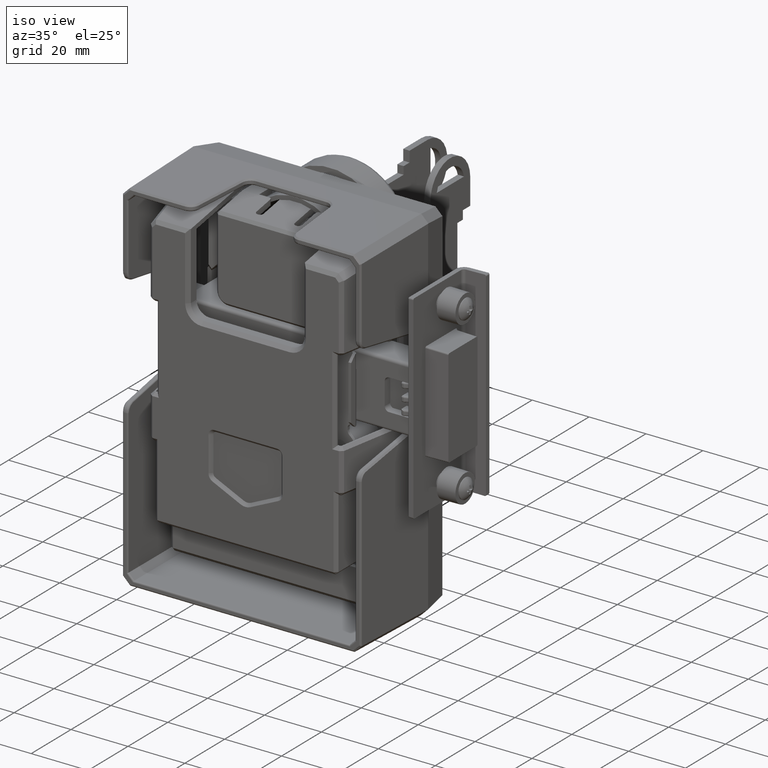
[diagram: clean part render]
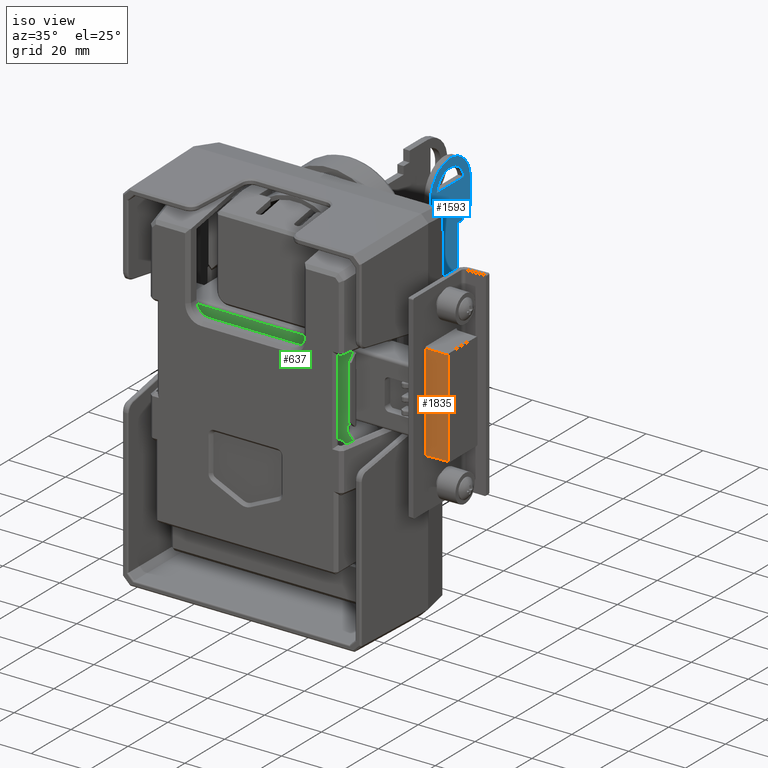
[diagram: same view with three faces highlighted in distinct colors, each labeled with its STEP entity id]
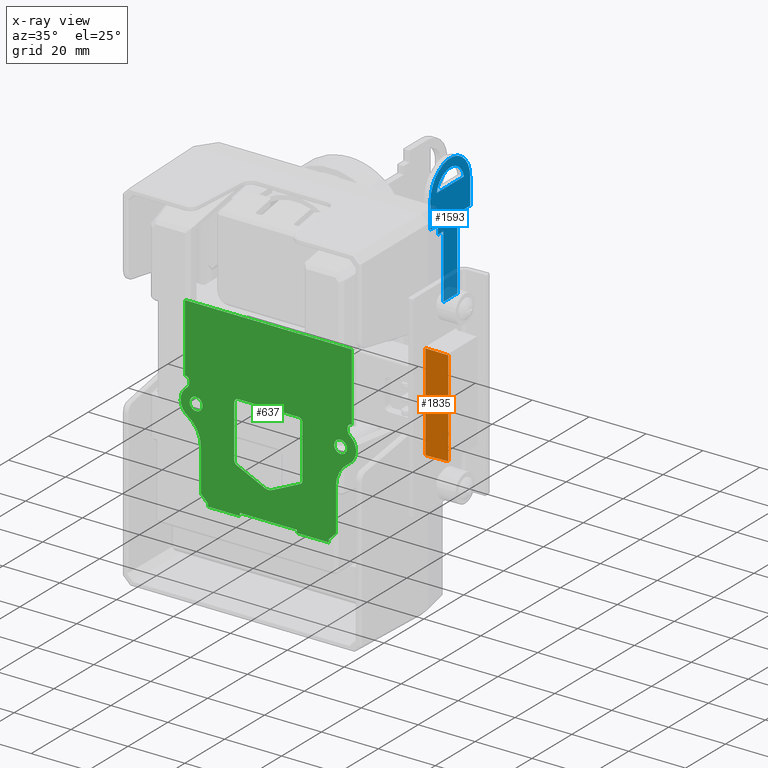
[diagram: x-ray of the same camera — body ghosted, the three highlighted faces saturated]
A machine part, iso view with three faces highlighted in distinct colors.
The next image is the same camera in x-ray (body ghosted, the three faces saturated) — at least one of them is partly hidden behind the body in this view.
Their STEP definitions:

[orange] entity #1835 — the highlighted planar face has unit normal (0.0175, -0.9998, 0).
#1835=ADVANCED_FACE('',(#16054),#16053,.T.);
#16053=PLANE('',#26972);
#16054=FACE_OUTER_BOUND('',#26973,.T.);
#26969=CARTESIAN_POINT('',(7.99999999999E-01,8.41396382257E+00,-2.04000913829E+01));
#26970=DIRECTION('',(-1.74524064373E-02,9.99847695156E-01,0.00000000000E+00));
#26971=DIRECTION('',(-9.99847695156E-01,-1.74524064373E-02,0.00000000000E+00));
#26972=AXIS2_PLACEMENT_3D('',#26969,#26970,#26971);
#26973=EDGE_LOOP('',(#35555,#35556,#35557,#35558));
#35555=ORIENTED_EDGE('',*,*,#40485,.F.);
#35556=ORIENTED_EDGE('',*,*,#40433,.T.);
#35557=ORIENTED_EDGE('',*,*,#40486,.F.);
#35558=ORIENTED_EDGE('',*,*,#40391,.F.);
#40391=EDGE_CURVE('',#64753,#64738,#64760,.T.);
#40433=EDGE_CURVE('',#65044,#65036,#65045,.T.);
#40485=EDGE_CURVE('',#65044,#64753,#65388,.T.);
#40486=EDGE_CURVE('',#64738,#65036,#65394,.T.);
#64738=VERTEX_POINT('',#83168);
#64753=VERTEX_POINT('',#83178);
#64760=LINE('',#83183,#83184);
#65036=VERTEX_POINT('',#83357);
#65044=VERTEX_POINT('',#83363);
#65045=LINE('',#83364,#83365);
#65388=LINE('',#83572,#83573);
#65394=LINE('',#83575,#83576);
#83168=CARTESIAN_POINT('',(-1.19390608511E-12,8.39999977067E+00,-1.70000761524E+01));
#83178=CARTESIAN_POINT('',(-8.00000000000E+00,8.26035925124E+00,-1.68604356330E+01));
#83183=CARTESIAN_POINT('',(-8.00000000000E+00,8.26035925124E+00,-1.68604356330E+01));
#83184=VECTOR('',#83185,8.00243706313E+00);
#83185=DIRECTION('',(9.99695459882E-01,1.74497491607E-02,-1.74497491607E-02));
#83357=CARTESIAN_POINT('',(-1.19390608511E-12,8.39999977067E+00,1.70000761524E+01));
#83363=CARTESIAN_POINT('',(-8.00000000000E+00,8.26035925124E+00,1.68604356330E+01));
#83364=CARTESIAN_POINT('',(-8.00000000000E+00,8.26035925124E+00,1.68604356330E+01));
#83365=VECTOR('',#83366,8.00243706313E+00);
#83366=DIRECTION('',(9.99695459882E-01,1.74497491607E-02,1.74497491607E-02));
#83572=CARTESIAN_POINT('',(-8.00000000000E+00,8.26035925124E+00,1.68604356330E+01));
#83573=VECTOR('',#83574,3.37208712660E+01);
#83574=DIRECTION('',(0.00000000000E+00,0.00000000000E+00,-1.00000000000E+00));
#83575=CARTESIAN_POINT('',(-1.19390608511E-12,8.39999977067E+00,-1.70000761524E+01));
#83576=VECTOR('',#83577,3.40001523048E+01);
#83577=DIRECTION('',(0.00000000000E+00,0.00000000000E+00,1.00000000000E+00));

[blue] entity #1593 — the highlighted planar face has unit normal (1, 0, 0).
#1593=ADVANCED_FACE('',(#13621,#13622),#13620,.T.);
#13620=PLANE('',#25413);
#13621=FACE_OUTER_BOUND('',#25414,.T.);
#13622=FACE_BOUND('',#25415,.T.);
#25410=CARTESIAN_POINT('',(3.30000000000E+00,8.82373963936E+01,-4.71773971656E+01));
#25411=DIRECTION('',(1.00000000000E+00,0.00000000000E+00,0.00000000000E+00));
#25412=DIRECTION('',(0.00000000000E+00,1.00000000000E+00,0.00000000000E+00));
#25413=AXIS2_PLACEMENT_3D('',#25410,#25411,#25412);
#25414=EDGE_LOOP('',(#34396,#34397,#34398,#34399,#34400,#34401,#34402,#34403,#34404,#34405,#34406,#34407));
#25415=EDGE_LOOP('',(#34408,#34409));
#34396=ORIENTED_EDGE('',*,*,#39811,.T.);
#34397=ORIENTED_EDGE('',*,*,#39812,.F.);
#34398=ORIENTED_EDGE('',*,*,#39813,.T.);
#34399=ORIENTED_EDGE('',*,*,#39814,.T.);
#34400=ORIENTED_EDGE('',*,*,#39815,.T.);
#34401=ORIENTED_EDGE('',*,*,#39816,.T.);
#34402=ORIENTED_EDGE('',*,*,#39817,.T.);
#34403=ORIENTED_EDGE('',*,*,#39818,.T.);
#34404=ORIENTED_EDGE('',*,*,#39819,.T.);
#34405=ORIENTED_EDGE('',*,*,#39820,.T.);
#34406=ORIENTED_EDGE('',*,*,#39821,.T.);
#34407=ORIENTED_EDGE('',*,*,#39822,.T.);
#34408=ORIENTED_EDGE('',*,*,#39823,.T.);
#34409=ORIENTED_EDGE('',*,*,#39824,.T.);
#39811=EDGE_CURVE('',#60889,#60890,#60891,.T.);
#39812=EDGE_CURVE('',#60897,#60890,#60898,.T.);
#39813=EDGE_CURVE('',#60897,#60904,#60905,.T.);
#39814=EDGE_CURVE('',#60904,#60911,#60912,.T.);
#39815=EDGE_CURVE('',#60911,#60918,#60919,.T.);
#39816=EDGE_CURVE('',#60918,#60925,#60926,.T.);
#39817=EDGE_CURVE('',#60925,#60932,#60933,.T.);
#39818=EDGE_CURVE('',#60932,#60939,#60940,.T.);
#39819=EDGE_CURVE('',#60939,#60946,#60947,.T.);
#39820=EDGE_CURVE('',#60946,#60953,#60954,.T.);
#39821=EDGE_CURVE('',#60953,#60960,#60961,.T.);
#39822=EDGE_CURVE('',#60960,#60889,#60967,.T.);
#39823=EDGE_CURVE('',#60973,#60974,#60975,.T.);
#39824=EDGE_CURVE('',#60974,#60973,#60981,.T.);
#60889=VERTEX_POINT('',#80958);
#60890=VERTEX_POINT('',#80959);
#60891=LINE('',#80960,#80961);
#60897=VERTEX_POINT('',#80963);
#60898=CIRCLE('',#80967,1.00000000000E+01);
#60904=VERTEX_POINT('',#80968);
#60905=LINE('',#80969,#80970);
#60911=VERTEX_POINT('',#80972);
#60912=LINE('',#80973,#80974);
#60918=VERTEX_POINT('',#80976);
#60919=LINE('',#80977,#80978);
#60925=VERTEX_POINT('',#80980);
#60926=LINE('',#80981,#80982);
#60932=VERTEX_POINT('',#80984);
#60933=LINE('',#80985,#80986);
#60939=VERTEX_POINT('',#80988);
#60940=LINE('',#80989,#80990);
#60946=VERTEX_POINT('',#80992);
#60947=LINE('',#80993,#80994);
#60953=VERTEX_POINT('',#80996);
#60954=LINE('',#80997,#80998);
#60960=VERTEX_POINT('',#81000);
#60961=LINE('',#81001,#81002);
#60967=LINE('',#81004,#81005);
#60973=VERTEX_POINT('',#81007);
#60974=VERTEX_POINT('',#81008);
#60975=CIRCLE('',#81012,7.00000000000E+00);
#60981=LINE('',#81013,#81014);
#80958=CARTESIAN_POINT('',(3.30000000000E+00,1.10237396394E+02,-1.73373971656E+01));
#80959=CARTESIAN_POINT('',(3.30000000000E+00,1.10237396394E+02,-8.33739716559E+00));
#80960=CARTESIAN_POINT('',(3.30000000000E+00,1.10237396394E+02,-1.73373971656E+01));
#80961=VECTOR('',#80962,9.00000000000E+00);
#80962=DIRECTION('',(0.00000000000E+00,0.00000000000E+00,1.00000000000E+00));
#80963=CARTESIAN_POINT('',(3.30000000000E+00,9.02373963936E+01,-8.33739716559E+00));
#80964=CARTESIAN_POINT('',(3.30000000000E+00,1.00237396394E+02,-8.33739716559E+00));
#80965=DIRECTION('',(-1.00000000000E+00,0.00000000000E+00,0.00000000000E+00));
#80966=DIRECTION('',(-0.00000000000E+00,-1.00000000000E+00,-0.00000000000E+00));
#80967=AXIS2_PLACEMENT_3D('',#80964,#80965,#80966);
#80968=CARTESIAN_POINT('',(3.30000000000E+00,9.02373963936E+01,-1.73373971656E+01));
#80969=CARTESIAN_POINT('',(3.30000000000E+00,9.02373963936E+01,-8.33739716559E+00));
#80970=VECTOR('',#80971,9.00000000000E+00);
#80971=DIRECTION('',(0.00000000000E+00,0.00000000000E+00,-1.00000000000E+00));
#80972=CARTESIAN_POINT('',(3.30000000000E+00,9.39873963936E+01,-1.73373971656E+01));
#80973=CARTESIAN_POINT('',(3.30000000000E+00,9.02373963936E+01,-1.73373971656E+01));
#80974=VECTOR('',#80975,3.75000000000E+00);
#80975=DIRECTION('',(0.00000000000E+00,1.00000000000E+00,0.00000000000E+00));
#80976=CARTESIAN_POINT('',(3.30000000000E+00,9.39873963936E+01,-2.03373971656E+01));
#80977=CARTESIAN_POINT('',(3.30000000000E+00,9.39873963936E+01,-1.73373971656E+01));
#80978=VECTOR('',#80979,3.00000000000E+00);
#80979=DIRECTION('',(0.00000000000E+00,0.00000000000E+00,-1.00000000000E+00));
#80980=CARTESIAN_POINT('',(3.30000000000E+00,9.67373963936E+01,-2.03373971656E+01));
#80981=CARTESIAN_POINT('',(3.30000000000E+00,9.39873963936E+01,-2.03373971656E+01));
#80982=VECTOR('',#80983,2.75000000000E+00);
#80983=DIRECTION('',(0.00000000000E+00,1.00000000000E+00,0.00000000000E+00));
#80984=CARTESIAN_POINT('',(3.30000000000E+00,9.67373963936E+01,-4.27373971656E+01));
#80985=CARTESIAN_POINT('',(3.30000000000E+00,9.67373963936E+01,-2.03373971656E+01));
#80986=VECTOR('',#80987,2.24000000000E+01);
#80987=DIRECTION('',(0.00000000000E+00,0.00000000000E+00,-1.00000000000E+00));
#80988=CARTESIAN_POINT('',(3.30000000000E+00,1.03737396394E+02,-4.27373971656E+01));
#80989=CARTESIAN_POINT('',(3.30000000000E+00,9.67373963936E+01,-4.27373971656E+01));
#80990=VECTOR('',#80991,7.00000000000E+00);
#80991=DIRECTION('',(0.00000000000E+00,1.00000000000E+00,0.00000000000E+00));
#80992=CARTESIAN_POINT('',(3.30000000000E+00,1.03737396394E+02,-2.03373971656E+01));
#80993=CARTESIAN_POINT('',(3.30000000000E+00,1.03737396394E+02,-4.27373971656E+01));
#80994=VECTOR('',#80995,2.24000000000E+01);
#80995=DIRECTION('',(0.00000000000E+00,0.00000000000E+00,1.00000000000E+00));
#80996=CARTESIAN_POINT('',(3.30000000000E+00,1.06487396394E+02,-2.03373971656E+01));
#80997=CARTESIAN_POINT('',(3.30000000000E+00,1.03737396394E+02,-2.03373971656E+01));
#80998=VECTOR('',#80999,2.75000000000E+00);
#80999=DIRECTION('',(0.00000000000E+00,1.00000000000E+00,0.00000000000E+00));
#81000=CARTESIAN_POINT('',(3.30000000000E+00,1.06487396394E+02,-1.73373971656E+01));
#81001=CARTESIAN_POINT('',(3.30000000000E+00,1.06487396394E+02,-2.03373971656E+01));
#81002=VECTOR('',#81003,3.00000000000E+00);
#81003=DIRECTION('',(0.00000000000E+00,0.00000000000E+00,1.00000000000E+00));
#81004=CARTESIAN_POINT('',(3.30000000000E+00,1.06487396394E+02,-1.73373971656E+01));
#81005=VECTOR('',#81006,3.75000000000E+00);
#81006=DIRECTION('',(0.00000000000E+00,1.00000000000E+00,0.00000000000E+00));
#81007=CARTESIAN_POINT('',(3.30000000001E+00,9.33999992280E+01,-6.83739716559E+00));
#81008=CARTESIAN_POINT('',(3.30000000001E+00,1.07074793559E+02,-6.83739716559E+00));
#81009=CARTESIAN_POINT('',(3.30000000001E+00,1.00237396394E+02,-8.33739716559E+00));
#81010=DIRECTION('',(-1.00000000000E+00,0.00000000000E+00,0.00000000000E+00));
#81011=DIRECTION('',(-0.00000000000E+00,-1.00000000000E+00,-0.00000000000E+00));
#81012=AXIS2_PLACEMENT_3D('',#81009,#81010,#81011);
#81013=CARTESIAN_POINT('',(3.30000000000E+00,1.07074793559E+02,-6.83739716559E+00));
#81014=VECTOR('',#81015,1.36747943312E+01);
#81015=DIRECTION('',(0.00000000000E+00,-1.00000000000E+00,0.00000000000E+00));

[green] entity #637 — the highlighted planar face has unit normal (0, -1, 0).
#637=ADVANCED_FACE('',(#4002,#4003,#4004,#4005),#4001,.T.);
#4001=PLANE('',#19501);
#4002=FACE_OUTER_BOUND('',#19502,.T.);
#4003=FACE_BOUND('',#19503,.T.);
#4004=FACE_BOUND('',#19504,.T.);
#4005=FACE_BOUND('',#19505,.T.);
#19498=CARTESIAN_POINT('',(-4.19624403934E+01,0.00000000000E+00,-8.58499999999E+01));
#19499=DIRECTION('',(-0.00000000000E+00,1.00000000000E+00,0.00000000000E+00));
#19500=DIRECTION('',(0.00000000000E+00,0.00000000000E+00,1.00000000000E+00));
#19501=AXIS2_PLACEMENT_3D('',#19498,#19499,#19500);
#19502=EDGE_LOOP('',(#29438,#29439,#29440,#29441,#29442,#29443,#29444,#29445,#29446,#29447,#29448,#29449,#29450,#29451,#29452,#29453,#29454,#29455,#29456,#29457,#29458,#29459,#29460,#29461,#29462,#29463,#29464,#29465));
#19503=EDGE_LOOP('',(#29466,#29467));
#19504=EDGE_LOOP('',(#29468,#29469,#29470,#29471,#29472,#29473,#29474,#29475,#29476,#29477));
#19505=EDGE_LOOP('',(#29478,#29479));
#29438=ORIENTED_EDGE('',*,*,#37404,.F.);
#29439=ORIENTED_EDGE('',*,*,#37517,.F.);
#29440=ORIENTED_EDGE('',*,*,#37505,.T.);
#29441=ORIENTED_EDGE('',*,*,#37553,.T.);
#29442=ORIENTED_EDGE('',*,*,#37449,.T.);
#29443=ORIENTED_EDGE('',*,*,#37554,.T.);
#29444=ORIENTED_EDGE('',*,*,#37526,.T.);
#29445=ORIENTED_EDGE('',*,*,#37489,.F.);
#29446=ORIENTED_EDGE('',*,*,#37485,.T.);
#29447=ORIENTED_EDGE('',*,*,#37483,.F.);
#29448=ORIENTED_EDGE('',*,*,#37479,.T.);
#29449=ORIENTED_EDGE('',*,*,#37555,.T.);
#29450=ORIENTED_EDGE('',*,*,#37496,.T.);
#29451=ORIENTED_EDGE('',*,*,#37556,.T.);
#29452=ORIENTED_EDGE('',*,*,#37460,.T.);
#29453=ORIENTED_EDGE('',*,*,#37557,.T.);
#29454=ORIENTED_EDGE('',*,*,#37363,.F.);
#29455=ORIENTED_EDGE('',*,*,#37558,.F.);
#29456=ORIENTED_EDGE('',*,*,#37398,.F.);
#29457=ORIENTED_EDGE('',*,*,#37434,.F.);
#29458=ORIENTED_EDGE('',*,*,#37384,.F.);
#29459=ORIENTED_EDGE('',*,*,#37387,.T.);
#29460=ORIENTED_EDGE('',*,*,#37390,.F.);
#29461=ORIENTED_EDGE('',*,*,#37393,.T.);
#29462=ORIENTED_EDGE('',*,*,#37416,.F.);
#29463=ORIENTED_EDGE('',*,*,#37443,.F.);
#29464=ORIENTED_EDGE('',*,*,#37354,.F.);
#29465=ORIENTED_EDGE('',*,*,#37433,.F.);
#29466=ORIENTED_EDGE('',*,*,#37559,.F.);
#29467=ORIENTED_EDGE('',*,*,#37560,.F.);
#29468=ORIENTED_EDGE('',*,*,#37515,.F.);
#29469=ORIENTED_EDGE('',*,*,#37412,.F.);
#29470=ORIENTED_EDGE('',*,*,#37408,.T.);
#29471=ORIENTED_EDGE('',*,*,#37425,.F.);
#29472=ORIENTED_EDGE('',*,*,#37428,.F.);
#29473=ORIENTED_EDGE('',*,*,#37551,.T.);
#29474=ORIENTED_EDGE('',*,*,#37549,.T.);
#29475=ORIENTED_EDGE('',*,*,#37546,.T.);
#29476=ORIENTED_EDGE('',*,*,#37508,.F.);
#29477=ORIENTED_EDGE('',*,*,#37512,.T.);
#29478=ORIENTED_EDGE('',*,*,#37561,.T.);
#29479=ORIENTED_EDGE('',*,*,#37562,.T.);
#37354=EDGE_CURVE('',#44692,#44699,#44700,.T.);
#37363=EDGE_CURVE('',#44752,#44759,#44760,.T.);
#37384=EDGE_CURVE('',#44893,#44879,#44900,.T.);
#37387=EDGE_CURVE('',#44893,#44913,#44920,.T.);
#37390=EDGE_CURVE('',#44933,#44913,#44940,.T.);
#37393=EDGE_CURVE('',#44933,#44953,#44960,.T.);
#37398=EDGE_CURVE('',#44986,#44993,#44994,.T.);
#37404=EDGE_CURVE('',#45027,#45034,#45035,.T.);
#37408=EDGE_CURVE('',#45061,#45062,#45063,.T.);
#37412=EDGE_CURVE('',#45061,#45089,#45090,.T.);
#37416=EDGE_CURVE('',#45115,#44953,#45116,.T.);
#37425=EDGE_CURVE('',#45170,#45062,#45177,.T.);
#37428=EDGE_CURVE('',#45190,#45170,#45197,.T.);
#37433=EDGE_CURVE('',#45034,#44692,#45229,.T.);
#37434=EDGE_CURVE('',#44879,#44986,#45235,.T.);
#37443=EDGE_CURVE('',#44699,#45115,#45291,.T.);
#37449=EDGE_CURVE('',#45331,#45324,#45332,.T.);
#37460=EDGE_CURVE('',#45403,#45396,#45404,.T.);
#37479=EDGE_CURVE('',#45530,#45523,#45531,.T.);
#37483=EDGE_CURVE('',#45530,#45557,#45558,.T.);
#37485=EDGE_CURVE('',#45570,#45557,#45571,.T.);
#37489=EDGE_CURVE('',#45570,#45597,#45598,.T.);
#37496=EDGE_CURVE('',#45643,#45636,#45644,.T.);
#37505=EDGE_CURVE('',#45705,#45698,#45706,.T.);
#37508=EDGE_CURVE('',#45725,#45726,#45727,.T.);
#37512=EDGE_CURVE('',#45725,#45753,#45754,.T.);
#37515=EDGE_CURVE('',#45089,#45753,#45773,.T.);
#37517=EDGE_CURVE('',#45705,#45027,#45785,.T.);
#37526=EDGE_CURVE('',#45839,#45597,#45840,.T.);
#37546=EDGE_CURVE('',#45968,#45726,#45969,.T.);
#37549=EDGE_CURVE('',#45988,#45968,#45989,.T.);
#37551=EDGE_CURVE('',#45190,#45988,#46001,.T.);
#37553=EDGE_CURVE('',#45698,#45331,#46013,.T.);
#37554=EDGE_CURVE('',#45324,#45839,#46019,.T.);
#37555=EDGE_CURVE('',#45523,#45643,#46025,.T.);
#37556=EDGE_CURVE('',#45636,#45403,#46031,.T.);
#37557=EDGE_CURVE('',#45396,#44759,#46037,.T.);
#37558=EDGE_CURVE('',#44993,#44752,#46043,.T.);
#37559=EDGE_CURVE('',#46049,#46050,#46051,.T.);
#37560=EDGE_CURVE('',#46050,#46049,#46057,.T.);
#37561=EDGE_CURVE('',#46063,#46064,#46065,.T.);
#37562=EDGE_CURVE('',#46064,#46063,#46071,.T.);
#44692=VERTEX_POINT('',#71311);
#44699=VERTEX_POINT('',#71316);
#44700=LINE('',#71317,#71318);
#44752=VERTEX_POINT('',#71346);
#44759=VERTEX_POINT('',#71350);
#44760=LINE('',#71351,#71352);
#44879=VERTEX_POINT('',#71418);
#44893=VERTEX_POINT('',#71426);
#44900=LINE('',#71430,#71431);
#44913=VERTEX_POINT('',#71438);
#44920=CIRCLE('',#71445,2.00000000000E+00);
#44933=VERTEX_POINT('',#71451);
#44940=CIRCLE('',#71458,5.45000001080E+00);
#44953=VERTEX_POINT('',#71464);
#44960=CIRCLE('',#71471,1.00000000000E+01);
#44986=VERTEX_POINT('',#71483);
#44993=VERTEX_POINT('',#71487);
#44994=LINE('',#71488,#71489);
#45027=VERTEX_POINT('',#71508);
#45034=VERTEX_POINT('',#71512);
#45035=LINE('',#71513,#71514);
#45061=VERTEX_POINT('',#71528);
#45062=VERTEX_POINT('',#71529);
#45063=CIRCLE('',#71533,1.50000000000E+00);
#45089=VERTEX_POINT('',#71546);
#45090=LINE('',#71547,#71548);
#45115=VERTEX_POINT('',#71560);
#45116=LINE('',#71561,#71562);
#45170=VERTEX_POINT('',#71591);
#45177=LINE('',#71595,#71596);
#45190=VERTEX_POINT('',#71603);
#45197=CIRCLE('',#71610,1.50000000000E+00);
#45229=LINE('',#71627,#71628);
#45235=CIRCLE('',#71633,1.25000000000E+00);
#45291=LINE('',#71675,#71676);
#45324=VERTEX_POINT('',#71694);
#45331=VERTEX_POINT('',#71698);
#45332=LINE('',#71699,#71700);
#45396=VERTEX_POINT('',#71735);
#45403=VERTEX_POINT('',#71740);
#45404=LINE('',#71741,#71742);
#45523=VERTEX_POINT('',#71807);
#45530=VERTEX_POINT('',#71811);
#45531=LINE('',#71812,#71813);
#45557=VERTEX_POINT('',#71827);
#45558=CIRCLE('',#71831,2.00000000000E+00);
#45570=VERTEX_POINT('',#71835);
#45571=CIRCLE('',#71839,5.45000001080E+00);
#45597=VERTEX_POINT('',#71853);
#45598=CIRCLE('',#71857,1.00000000000E+01);
#45636=VERTEX_POINT('',#71876);
#45643=VERTEX_POINT('',#71881);
#45644=LINE('',#71882,#71883);
#45698=VERTEX_POINT('',#71912);
#45705=VERTEX_POINT('',#71917);
#45706=LINE('',#71918,#71919);
#45725=VERTEX_POINT('',#71928);
#45726=VERTEX_POINT('',#71929);
#45727=CIRCLE('',#71933,1.50000000000E+00);
#45753=VERTEX_POINT('',#71946);
#45754=LINE('',#71947,#71948);
#45773=CIRCLE('',#71960,3.00000000000E+00);
#45785=LINE('',#71965,#71966);
#45839=VERTEX_POINT('',#71994);
#45840=LINE('',#71995,#71996);
#45968=VERTEX_POINT('',#72069);
#45969=LINE('',#72070,#72071);
#45988=VERTEX_POINT('',#72081);
#45989=CIRCLE('',#72085,1.50000000000E+00);
#46001=LINE('',#72089,#72090);
#46013=LINE('',#72095,#72096);
#46019=LINE('',#72098,#72099);
#46025=CIRCLE('',#72104,1.25000000000E+00);
#46031=LINE('',#72105,#72106);
#46037=LINE('',#72108,#72109);
#46043=LINE('',#72111,#72112);
#46049=VERTEX_POINT('',#72114);
#46050=VERTEX_POINT('',#72115);
#46051=CIRCLE('',#72119,2.25000000000E+00);
#46057=CIRCLE('',#72123,2.25000000000E+00);
#46063=VERTEX_POINT('',#72124);
#46064=VERTEX_POINT('',#72125);
#46065=CIRCLE('',#72129,2.25000000000E+00);
#46071=CIRCLE('',#72133,2.25000000000E+00);
#71311=CARTESIAN_POINT('',(2.12499999998E+01,0.00000000000E+00,-7.94999999999E+01));
#71316=CARTESIAN_POINT('',(2.12499999998E+01,0.00000000000E+00,-7.84999999999E+01));
#71317=CARTESIAN_POINT('',(2.12499999998E+01,0.00000000000E+00,-7.94999999999E+01));
#71318=VECTOR('',#71319,1.00000000000E+00);
#71319=DIRECTION('',(0.00000000000E+00,0.00000000000E+00,1.00000000000E+00));
#71346=CARTESIAN_POINT('',(2.93499999999E+01,0.00000000000E+00,-1.64999999996E+01));
#71350=CARTESIAN_POINT('',(2.93499999999E+01,0.00000000000E+00,-1.59999999997E+01));
#71351=CARTESIAN_POINT('',(2.93499999999E+01,0.00000000000E+00,-1.64999999996E+01));
#71352=VECTOR('',#71353,4.99999999863E-01);
#71353=DIRECTION('',(2.84217094382E-14,0.00000000000E+00,1.00000000000E+00));
#71418=CARTESIAN_POINT('',(2.78499999999E+01,0.00000000000E+00,-4.12499999996E+01));
#71426=CARTESIAN_POINT('',(2.78499999999E+01,0.00000000000E+00,-4.20250522958E+01));
#71430=CARTESIAN_POINT('',(2.78499999999E+01,0.00000000000E+00,-4.20250522958E+01));
#71431=VECTOR('',#71432,7.75052296214E-01);
#71432=DIRECTION('',(0.00000000000E+00,0.00000000000E+00,1.00000000000E+00));
#71438=CARTESIAN_POINT('',(2.86553691263E+01,0.00000000000E+00,-4.36290650999E+01));
#71442=CARTESIAN_POINT('',(2.98499999999E+01,0.00000000000E+00,-4.20250522958E+01));
#71443=DIRECTION('',(0.00000000000E+00,-1.00000000000E+00,0.00000000000E+00));
#71444=DIRECTION('',(-1.00000000000E+00,-0.00000000000E+00,-6.17225931799E-16));
#71445=AXIS2_PLACEMENT_3D('',#71442,#71443,#71444);
#71451=CARTESIAN_POINT('',(2.83454692524E+01,0.00000000000E+00,-5.25854891707E+01));
#71455=CARTESIAN_POINT('',(2.53999999891E+01,0.00000000000E+00,-4.79999999998E+01));
#71456=DIRECTION('',(0.00000000000E+00,-1.00000000000E+00,0.00000000000E+00));
#71457=DIRECTION('',(-1.00000000000E+00,-0.00000000000E+00,-6.17225931799E-16));
#71458=AXIS2_PLACEMENT_3D('',#71455,#71456,#71457);
#71464=CARTESIAN_POINT('',(2.37499999998E+01,0.00000000000E+00,-6.09992307522E+01));
#71468=CARTESIAN_POINT('',(3.37499999998E+01,0.00000000000E+00,-6.09992307522E+01));
#71469=DIRECTION('',(0.00000000000E+00,-1.00000000000E+00,0.00000000000E+00));
#71470=DIRECTION('',(-1.00000000000E+00,-0.00000000000E+00,-6.17225931799E-16));
#71471=AXIS2_PLACEMENT_3D('',#71468,#71469,#71470);
#71483=CARTESIAN_POINT('',(2.90999999999E+01,0.00000000000E+00,-3.99999999996E+01));
#71487=CARTESIAN_POINT('',(2.93499999999E+01,0.00000000000E+00,-3.99999999996E+01));
#71488=CARTESIAN_POINT('',(2.90999999999E+01,0.00000000000E+00,-3.99999999996E+01));
#71489=VECTOR('',#71490,2.50000000000E-01);
#71490=DIRECTION('',(1.00000000000E+00,0.00000000000E+00,0.00000000000E+00));
#71508=CARTESIAN_POINT('',(1.00000000000E+01,0.00000000000E+00,-7.84999999999E+01));
#71512=CARTESIAN_POINT('',(1.00000000000E+01,0.00000000000E+00,-7.94999999999E+01));
#71513=CARTESIAN_POINT('',(1.00000000000E+01,0.00000000000E+00,-7.84999999999E+01));
#71514=VECTOR('',#71515,1.00000000000E+00);
#71515=DIRECTION('',(1.77635683940E-15,0.00000000000E+00,-1.00000000000E+00));
#71528=CARTESIAN_POINT('',(1.11339273926E+01,0.00000000000E+00,-6.36182981480E+01));
#71529=CARTESIAN_POINT('',(1.20000000000E+01,0.00000000000E+00,-6.22588364674E+01));
#71530=CARTESIAN_POINT('',(1.04999999999E+01,0.00000000000E+00,-6.22588364674E+01));
#71531=DIRECTION('',(0.00000000000E+00,-1.00000000000E+00,0.00000000000E+00));
#71532=DIRECTION('',(6.17225931799E-16,-0.00000000000E+00,-1.00000000000E+00));
#71533=AXIS2_PLACEMENT_3D('',#71530,#71531,#71532);
#71546=CARTESIAN_POINT('',(1.26785478520E+00,0.00000000000E+00,-6.82189233607E+01));
#71547=CARTESIAN_POINT('',(1.11339273926E+01,0.00000000000E+00,-6.36182981480E+01));
#71548=VECTOR('',#71549,1.08860066618E+01);
#71549=DIRECTION('',(-9.06307787037E-01,0.00000000000E+00,-4.22618261741E-01));
#71560=CARTESIAN_POINT('',(2.37499999998E+01,3.55271367880E-15,-7.59999999999E+01));
#71561=CARTESIAN_POINT('',(2.37499999998E+01,3.55271367880E-15,-7.59999999999E+01));
#71562=VECTOR('',#71563,1.50007692477E+01);
#71563=DIRECTION('',(-4.73670865824E-16,0.00000000000E+00,1.00000000000E+00));
#71591=CARTESIAN_POINT('',(1.20000000000E+01,0.00000000000E+00,-4.39999999996E+01));
#71595=CARTESIAN_POINT('',(1.20000000000E+01,0.00000000000E+00,-4.39999999996E+01));
#71596=VECTOR('',#71597,1.82588364678E+01);
#71597=DIRECTION('',(-2.46779512307E-12,0.00000000000E+00,-1.00000000000E+00));
#71603=CARTESIAN_POINT('',(1.05000000000E+01,0.00000000000E+00,-4.24999999996E+01));
#71607=CARTESIAN_POINT('',(1.05000000000E+01,0.00000000000E+00,-4.39999999996E+01));
#71608=DIRECTION('',(0.00000000000E+00,1.00000000000E+00,-0.00000000000E+00));
#71609=DIRECTION('',(6.17225931799E-16,-0.00000000000E+00,-1.00000000000E+00));
#71610=AXIS2_PLACEMENT_3D('',#71607,#71608,#71609);
#71627=CARTESIAN_POINT('',(1.00000000000E+01,0.00000000000E+00,-7.94999999999E+01));
#71628=VECTOR('',#71629,1.12499999998E+01);
#71629=DIRECTION('',(1.00000000000E+00,0.00000000000E+00,1.26318708581E-15));
#71630=CARTESIAN_POINT('',(2.90999999999E+01,0.00000000000E+00,-4.12499999996E+01));
#71631=DIRECTION('',(0.00000000000E+00,1.00000000000E+00,-0.00000000000E+00));
#71632=DIRECTION('',(6.17225931799E-16,-0.00000000000E+00,-1.00000000000E+00));
#71633=AXIS2_PLACEMENT_3D('',#71630,#71631,#71632);
#71675=CARTESIAN_POINT('',(2.12499999998E+01,0.00000000000E+00,-7.84999999999E+01));
#71676=VECTOR('',#71677,3.53553390593E+00);
#71677=DIRECTION('',(7.07106781187E-01,0.00000000000E+00,7.07106781187E-01));
#71694=CARTESIAN_POINT('',(-2.12499999998E+01,0.00000000000E+00,-7.84999999999E+01));
#71698=CARTESIAN_POINT('',(-2.12499999998E+01,0.00000000000E+00,-7.94999999999E+01));
#71699=CARTESIAN_POINT('',(-2.12499999998E+01,0.00000000000E+00,-7.94999999999E+01));
#71700=VECTOR('',#71701,1.00000000000E+00);
#71701=DIRECTION('',(0.00000000000E+00,0.00000000000E+00,1.00000000000E+00));
#71735=CARTESIAN_POINT('',(-2.93499999999E+01,0.00000000000E+00,-1.59999999997E+01));
#71740=CARTESIAN_POINT('',(-2.93499999999E+01,0.00000000000E+00,-1.64999999996E+01));
#71741=CARTESIAN_POINT('',(-2.93499999999E+01,0.00000000000E+00,-1.64999999996E+01));
#71742=VECTOR('',#71743,4.99999999863E-01);
#71743=DIRECTION('',(-2.84217094382E-14,0.00000000000E+00,1.00000000000E+00));
#71807=CARTESIAN_POINT('',(-2.78499999999E+01,0.00000000000E+00,-4.12499999996E+01));
#71811=CARTESIAN_POINT('',(-2.78499999999E+01,0.00000000000E+00,-4.20250522958E+01));
#71812=CARTESIAN_POINT('',(-2.78499999999E+01,0.00000000000E+00,-4.20250522958E+01));
#71813=VECTOR('',#71814,7.75052296214E-01);
#71814=DIRECTION('',(0.00000000000E+00,0.00000000000E+00,1.00000000000E+00));
#71827=CARTESIAN_POINT('',(-2.86553691263E+01,0.00000000000E+00,-4.36290650999E+01));
#71828=CARTESIAN_POINT('',(-2.98499999999E+01,0.00000000000E+00,-4.20250522958E+01));
#71829=DIRECTION('',(0.00000000000E+00,1.00000000000E+00,0.00000000000E+00));
#71830=DIRECTION('',(1.00000000000E+00,-0.00000000000E+00,-0.00000000000E+00));
#71831=AXIS2_PLACEMENT_3D('',#71828,#71829,#71830);
#71835=CARTESIAN_POINT('',(-2.83454692524E+01,0.00000000000E+00,-5.25854891707E+01));
#71836=CARTESIAN_POINT('',(-2.53999999891E+01,0.00000000000E+00,-4.79999999998E+01));
#71837=DIRECTION('',(0.00000000000E+00,1.00000000000E+00,0.00000000000E+00));
#71838=DIRECTION('',(1.00000000000E+00,-0.00000000000E+00,-0.00000000000E+00));
#71839=AXIS2_PLACEMENT_3D('',#71836,#71837,#71838);
#71853=CARTESIAN_POINT('',(-2.37499999998E+01,0.00000000000E+00,-6.09992307522E+01));
#71854=CARTESIAN_POINT('',(-3.37499999998E+01,0.00000000000E+00,-6.09992307522E+01));
#71855=DIRECTION('',(0.00000000000E+00,1.00000000000E+00,0.00000000000E+00));
#71856=DIRECTION('',(1.00000000000E+00,-0.00000000000E+00,-0.00000000000E+00));
#71857=AXIS2_PLACEMENT_3D('',#71854,#71855,#71856);
#71876=CARTESIAN_POINT('',(-2.93499999999E+01,0.00000000000E+00,-3.99999999996E+01));
#71881=CARTESIAN_POINT('',(-2.90999999999E+01,0.00000000000E+00,-3.99999999996E+01));
#71882=CARTESIAN_POINT('',(-2.90999999999E+01,0.00000000000E+00,-3.99999999996E+01));
#71883=VECTOR('',#71884,2.50000000000E-01);
#71884=DIRECTION('',(-1.00000000000E+00,0.00000000000E+00,0.00000000000E+00));
#71912=CARTESIAN_POINT('',(-1.00000000000E+01,0.00000000000E+00,-7.94999999999E+01));
#71917=CARTESIAN_POINT('',(-1.00000000000E+01,0.00000000000E+00,-7.84999999999E+01));
#71918=CARTESIAN_POINT('',(-1.00000000000E+01,0.00000000000E+00,-7.84999999999E+01));
#71919=VECTOR('',#71920,1.00000000000E+00);
#71920=DIRECTION('',(0.00000000000E+00,0.00000000000E+00,-1.00000000000E+00));
#71928=CARTESIAN_POINT('',(-1.11339273926E+01,0.00000000000E+00,-6.36182981480E+01));
#71929=CARTESIAN_POINT('',(-1.20000000000E+01,0.00000000000E+00,-6.22588364674E+01));
#71930=CARTESIAN_POINT('',(-1.04999999999E+01,0.00000000000E+00,-6.22588364674E+01));
#71931=DIRECTION('',(0.00000000000E+00,1.00000000000E+00,0.00000000000E+00));
#71932=DIRECTION('',(-0.00000000000E+00,0.00000000000E+00,-1.00000000000E+00));
#71933=AXIS2_PLACEMENT_3D('',#71930,#71931,#71932);
#71946=CARTESIAN_POINT('',(-1.26785478520E+00,0.00000000000E+00,-6.82189233607E+01));
#71947=CARTESIAN_POINT('',(-1.11339273926E+01,0.00000000000E+00,-6.36182981480E+01));
#71948=VECTOR('',#71949,1.08860066618E+01);
#71949=DIRECTION('',(9.06307787037E-01,0.00000000000E+00,-4.22618261741E-01));
#71957=CARTESIAN_POINT('',(3.54774661521E-11,0.00000000000E+00,-6.54999999996E+01));
#71958=DIRECTION('',(0.00000000000E+00,1.00000000000E+00,0.00000000000E+00));
#71959=DIRECTION('',(4.22618261721E-01,0.00000000000E+00,-9.06307787046E-01));
#71960=AXIS2_PLACEMENT_3D('',#71957,#71958,#71959);
#71965=CARTESIAN_POINT('',(-1.00000000000E+01,0.00000000000E+00,-7.84999999999E+01));
#71966=VECTOR('',#71967,2.00000000000E+01);
#71967=DIRECTION('',(1.00000000000E+00,0.00000000000E+00,0.00000000000E+00));
#71994=CARTESIAN_POINT('',(-2.37499999998E+01,3.55271367880E-15,-7.59999999999E+01));
#71995=CARTESIAN_POINT('',(-2.37499999998E+01,3.55271367880E-15,-7.59999999999E+01));
#71996=VECTOR('',#71997,1.50007692477E+01);
#71997=DIRECTION('',(0.00000000000E+00,0.00000000000E+00,1.00000000000E+00));
#72069=CARTESIAN_POINT('',(-1.20000000000E+01,0.00000000000E+00,-4.39999999996E+01));
#72070=CARTESIAN_POINT('',(-1.20000000000E+01,0.00000000000E+00,-4.39999999996E+01));
#72071=VECTOR('',#72072,1.82588364678E+01);
#72072=DIRECTION('',(2.46847613568E-12,0.00000000000E+00,-1.00000000000E+00));
#72081=CARTESIAN_POINT('',(-1.05000000000E+01,0.00000000000E+00,-4.24999999996E+01));
#72082=CARTESIAN_POINT('',(-1.05000000000E+01,0.00000000000E+00,-4.39999999996E+01));
#72083=DIRECTION('',(0.00000000000E+00,-1.00000000000E+00,0.00000000000E+00));
#72084=DIRECTION('',(-0.00000000000E+00,-0.00000000000E+00,-1.00000000000E+00));
#72085=AXIS2_PLACEMENT_3D('',#72082,#72083,#72084);
#72089=CARTESIAN_POINT('',(1.05000000000E+01,0.00000000000E+00,-4.24999999996E+01));
#72090=VECTOR('',#72091,2.10000000000E+01);
#72091=DIRECTION('',(-1.00000000000E+00,0.00000000000E+00,0.00000000000E+00));
#72095=CARTESIAN_POINT('',(-1.00000000000E+01,0.00000000000E+00,-7.94999999999E+01));
#72096=VECTOR('',#72097,1.12499999998E+01);
#72097=DIRECTION('',(-1.00000000000E+00,0.00000000000E+00,0.00000000000E+00));
#72098=CARTESIAN_POINT('',(-2.12499999998E+01,0.00000000000E+00,-7.84999999999E+01));
#72099=VECTOR('',#72100,3.53553390593E+00);
#72100=DIRECTION('',(-7.07106781187E-01,0.00000000000E+00,7.07106781187E-01));
#72101=CARTESIAN_POINT('',(-2.90999999999E+01,0.00000000000E+00,-4.12499999996E+01));
#72102=DIRECTION('',(0.00000000000E+00,-1.00000000000E+00,0.00000000000E+00));
#72103=DIRECTION('',(-0.00000000000E+00,-0.00000000000E+00,-1.00000000000E+00));
#72104=AXIS2_PLACEMENT_3D('',#72101,#72102,#72103);
#72105=CARTESIAN_POINT('',(-2.93499999999E+01,0.00000000000E+00,-3.99999999996E+01));
#72106=VECTOR('',#72107,2.35000000000E+01);
#72107=DIRECTION('',(0.00000000000E+00,0.00000000000E+00,1.00000000000E+00));
#72108=CARTESIAN_POINT('',(-2.93499999999E+01,0.00000000000E+00,-1.60000000000E+01));
#72109=VECTOR('',#72110,5.86999999999E+01);
#72110=DIRECTION('',(1.00000000000E+00,0.00000000000E+00,0.00000000000E+00));
#72111=CARTESIAN_POINT('',(2.93499999999E+01,0.00000000000E+00,-3.99999999996E+01));
#72112=VECTOR('',#72113,2.35000000000E+01);
#72113=DIRECTION('',(-6.04717221923E-16,0.00000000000E+00,1.00000000000E+00));
#72114=CARTESIAN_POINT('',(-2.53999999891E+01,0.00000000000E+00,-4.57499999998E+01));
#72115=CARTESIAN_POINT('',(-2.53999999891E+01,0.00000000000E+00,-5.02499999998E+01));
#72116=CARTESIAN_POINT('',(-2.53999999891E+01,0.00000000000E+00,-4.79999999998E+01));
#72117=DIRECTION('',(0.00000000000E+00,1.00000000000E+00,0.00000000000E+00));
#72118=DIRECTION('',(-1.22460635382E-16,0.00000000000E+00,-1.00000000000E+00));
#72119=AXIS2_PLACEMENT_3D('',#72116,#72117,#72118);
#72120=CARTESIAN_POINT('',(-2.53999999891E+01,0.00000000000E+00,-4.79999999998E+01));
#72121=DIRECTION('',(0.00000000000E+00,1.00000000000E+00,0.00000000000E+00));
#72122=DIRECTION('',(-1.22460635382E-16,0.00000000000E+00,-1.00000000000E+00));
#72123=AXIS2_PLACEMENT_3D('',#72120,#72121,#72122);
#72124=CARTESIAN_POINT('',(2.53999999891E+01,0.00000000000E+00,-5.02499999998E+01));
#72125=CARTESIAN_POINT('',(2.53999999891E+01,0.00000000000E+00,-4.57499999998E+01));
#72126=CARTESIAN_POINT('',(2.53999999891E+01,0.00000000000E+00,-4.79999999998E+01));
#72127=DIRECTION('',(0.00000000000E+00,-1.00000000000E+00,-0.00000000000E+00));
#72128=DIRECTION('',(7.39686567182E-16,0.00000000000E+00,-1.00000000000E+00));
#72129=AXIS2_PLACEMENT_3D('',#72126,#72127,#72128);
#72130=CARTESIAN_POINT('',(2.53999999891E+01,0.00000000000E+00,-4.79999999998E+01));
#72131=DIRECTION('',(0.00000000000E+00,-1.00000000000E+00,-0.00000000000E+00));
#72132=DIRECTION('',(7.39686567182E-16,0.00000000000E+00,-1.00000000000E+00));
#72133=AXIS2_PLACEMENT_3D('',#72130,#72131,#72132);